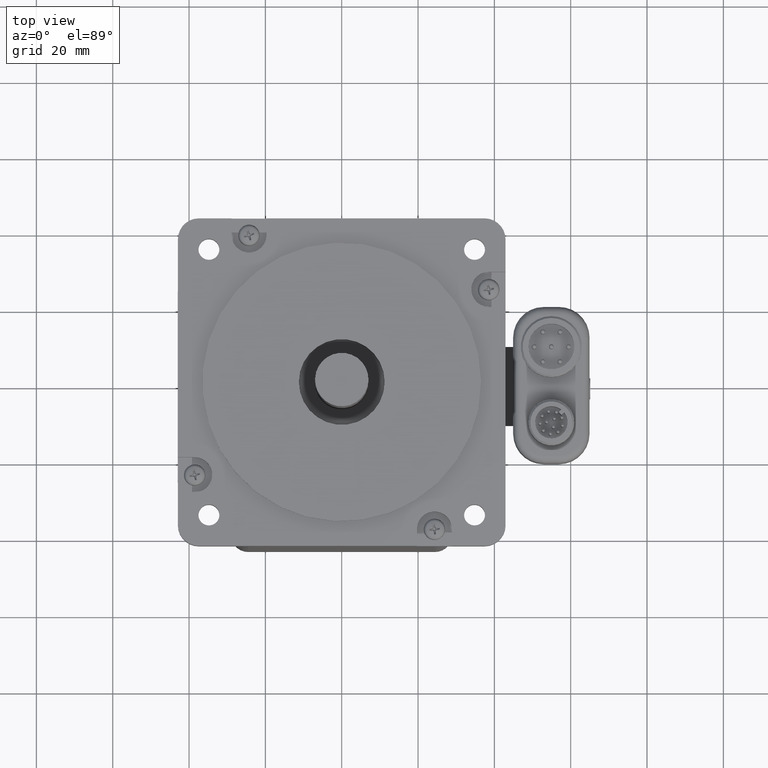
[diagram: clean part render]
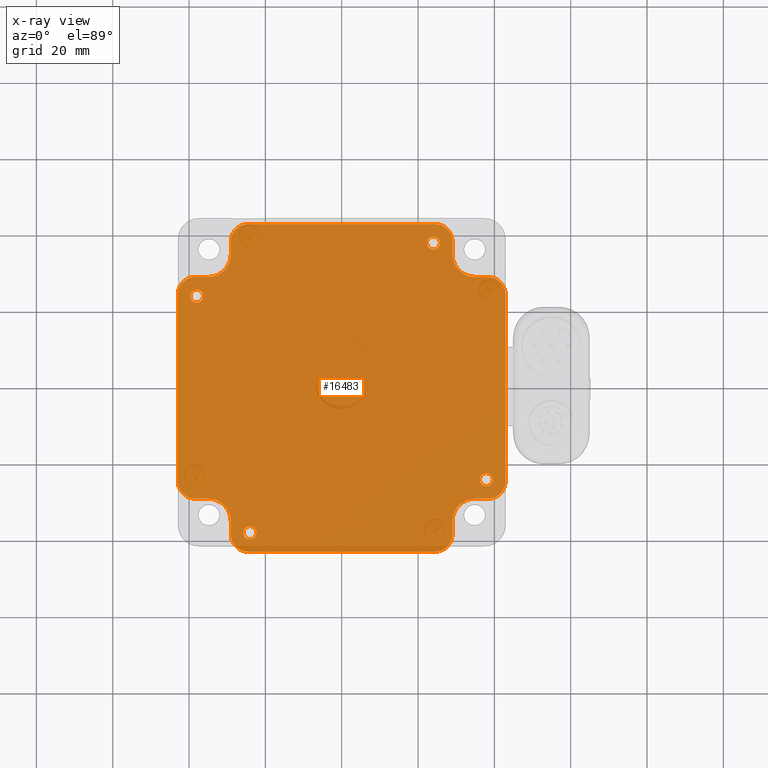
[diagram: x-ray — body ghosted, one internal face saturated and labeled with its STEP entity id]
A machine part, top view, then the same camera in x-ray: the body is ghosted and one INTERNAL B-rep face — a face not visible from any outside direction — is saturated and labeled: STEP entity #16483.
In plain terms, the highlighted planar face has unit normal (0, 0, -1).
Its self-contained STEP definition (entity closure, byte-faithful):
#15717=CARTESIAN_POINT('',(22.324999999999903,37.975000000000193,-71.299999999999912));
#15718=VERTEX_POINT('',#15717);
#15719=CARTESIAN_POINT('',(24.024999999999899,37.975000000000193,-71.299999999999912));
#15720=DIRECTION('',(0.0,0.0,-1.0));
#15721=DIRECTION('',(1.0,0.0,0.0));
#15722=AXIS2_PLACEMENT_3D('',#15719,#15720,#15721);
#15723=CIRCLE('',#15722,1.7);
#15724=EDGE_CURVE('',#15718,#15718,#15723,.T.);
#15757=CARTESIAN_POINT('',(36.181856135419117,-24.0249999999998,-71.299999999999912));
#15758=VERTEX_POINT('',#15757);
#15759=CARTESIAN_POINT('',(37.88185613541912,-24.024999999999793,-71.299999999999912));
#15760=DIRECTION('',(0.0,0.0,-1.0));
#15761=DIRECTION('',(1.0,0.0,0.0));
#15762=AXIS2_PLACEMENT_3D('',#15759,#15760,#15761);
#15763=CIRCLE('',#15762,1.7);
#15764=EDGE_CURVE('',#15758,#15758,#15763,.T.);
#15797=CARTESIAN_POINT('',(-25.775000000000084,-37.925000000000004,-71.299999999999912));
#15798=VERTEX_POINT('',#15797);
#15799=CARTESIAN_POINT('',(-24.075000000000088,-37.924999999999997,-71.299999999999912));
#15800=DIRECTION('',(0.0,0.0,-1.0));
#15801=DIRECTION('',(1.0,0.0,0.0));
#15802=AXIS2_PLACEMENT_3D('',#15799,#15800,#15801);
#15803=CIRCLE('',#15802,1.7);
#15804=EDGE_CURVE('',#15798,#15798,#15803,.T.);
#15837=CARTESIAN_POINT('',(-39.674999999999841,24.074999999999971,-71.299999999999912));
#15838=VERTEX_POINT('',#15837);
#15839=CARTESIAN_POINT('',(-37.974999999999845,24.074999999999974,-71.299999999999912));
#15840=DIRECTION('',(0.0,0.0,-1.0));
#15841=DIRECTION('',(1.0,0.0,0.0));
#15842=AXIS2_PLACEMENT_3D('',#15839,#15840,#15841);
#15843=CIRCLE('',#15842,1.7);
#15844=EDGE_CURVE('',#15838,#15838,#15843,.T.);
#15857=CARTESIAN_POINT('',(34.924999999999564,29.075000000000117,-71.299999999999912));
#15858=VERTEX_POINT('',#15857);
#15859=CARTESIAN_POINT('',(29.024999999999551,34.975000000000193,-71.299999999999912));
#15860=VERTEX_POINT('',#15859);
#15861=CARTESIAN_POINT('',(34.92499999999955,34.975000000000207,-71.299999999999912));
#15862=DIRECTION('',(0.0,0.0,-1.0));
#15863=DIRECTION('',(0.0,-1.0,0.0));
#15864=AXIS2_PLACEMENT_3D('',#15861,#15862,#15863);
#15865=CIRCLE('',#15864,5.9);
#15866=EDGE_CURVE('',#15858,#15860,#15865,.T.);
#15889=CARTESIAN_POINT('',(29.024999999999544,38.375000000000064,-71.299999999999912));
#15890=VERTEX_POINT('',#15889);
#15891=CARTESIAN_POINT('',(29.024999999999551,34.975000000000193,-71.299999999999912));
#15892=DIRECTION('',(0.0,1.0,0.0));
#15893=VECTOR('',#15892,3.399999999999864);
#15894=LINE('',#15891,#15893);
#15895=EDGE_CURVE('',#15860,#15890,#15894,.T.);
#15913=CARTESIAN_POINT('',(24.424999999999528,42.975000000000108,-71.299999999999912));
#15914=VERTEX_POINT('',#15913);
#15915=CARTESIAN_POINT('',(24.424999999999528,38.37500000000005,-71.299999999999912));
#15916=DIRECTION('',(0.0,0.0,1.0));
#15917=DIRECTION('',(0.0,-1.0,0.0));
#15918=AXIS2_PLACEMENT_3D('',#15915,#15916,#15917);
#15919=CIRCLE('',#15918,4.599999999999999);
#15920=EDGE_CURVE('',#15890,#15914,#15919,.T.);
#15938=CARTESIAN_POINT('',(-24.475000000000104,42.975000000000108,-71.299999999999912));
#15939=VERTEX_POINT('',#15938);
#15940=CARTESIAN_POINT('',(24.424999999999528,42.975000000000108,-71.299999999999912));
#15941=DIRECTION('',(-1.0,0.0,0.0));
#15942=VECTOR('',#15941,48.899999999999636);
#15943=LINE('',#15940,#15942);
#15944=EDGE_CURVE('',#15914,#15939,#15943,.T.);
#15962=CARTESIAN_POINT('',(-29.075000000000255,38.374999999999943,-71.299999999999912));
#15963=VERTEX_POINT('',#15962);
#15964=CARTESIAN_POINT('',(-24.475000000000094,38.374999999999957,-71.299999999999912));
#15965=DIRECTION('',(0.0,0.0,1.0));
#15966=DIRECTION('',(1.0,0.0,0.0));
#15967=AXIS2_PLACEMENT_3D('',#15964,#15965,#15966);
#15968=CIRCLE('',#15967,4.6);
#15969=EDGE_CURVE('',#15939,#15963,#15968,.T.);
#15987=CARTESIAN_POINT('',(-29.075000000000099,34.97500000000008,-71.299999999999912));
#15988=VERTEX_POINT('',#15987);
#15989=CARTESIAN_POINT('',(-29.075000000000255,38.374999999999943,-71.299999999999912));
#15990=DIRECTION('',(0.0,-1.0,0.0));
#15991=VECTOR('',#15990,3.399999999999864);
#15992=LINE('',#15989,#15991);
#15993=EDGE_CURVE('',#15963,#15988,#15992,.T.);
#16011=CARTESIAN_POINT('',(-34.975000000000094,29.074999999999982,-71.299999999999912));
#16012=VERTEX_POINT('',#16011);
#16013=CARTESIAN_POINT('',(-34.975000000000101,34.97499999999998,-71.299999999999912));
#16014=DIRECTION('',(0.0,0.0,-1.0));
#16015=DIRECTION('',(1.0,0.0,0.0));
#16016=AXIS2_PLACEMENT_3D('',#16013,#16014,#16015);
#16017=CIRCLE('',#16016,5.9);
#16018=EDGE_CURVE('',#15988,#16012,#16017,.T.);
#16036=CARTESIAN_POINT('',(-38.375000000000171,29.074999999999982,-71.299999999999912));
#16037=VERTEX_POINT('',#16036);
#16038=CARTESIAN_POINT('',(-34.975000000000094,29.074999999999982,-71.299999999999912));
#16039=DIRECTION('',(-1.0,0.0,0.0));
#16040=VECTOR('',#16039,3.400000000000077);
#16041=LINE('',#16038,#16040);
#16042=EDGE_CURVE('',#16012,#16037,#16041,.T.);
#16060=CARTESIAN_POINT('',(-42.975000000000072,24.475000000000051,-71.299999999999912));
#16061=VERTEX_POINT('',#16060);
#16062=CARTESIAN_POINT('',(-38.375000000000156,24.475000000000058,-71.299999999999912));
#16063=DIRECTION('',(0.0,0.0,1.0));
#16064=DIRECTION('',(1.0,0.0,0.0));
#16065=AXIS2_PLACEMENT_3D('',#16062,#16063,#16064);
#16066=CIRCLE('',#16065,4.6);
#16067=EDGE_CURVE('',#16037,#16061,#16066,.T.);
#16085=CARTESIAN_POINT('',(-42.97499999999998,-24.424999999998882,-71.299999999999912));
#16086=VERTEX_POINT('',#16085);
#16087=CARTESIAN_POINT('',(-42.975000000000072,24.475000000000051,-71.299999999999912));
#16088=DIRECTION('',(0.0,-1.0,0.0));
#16089=VECTOR('',#16088,48.899999999998933);
#16090=LINE('',#16087,#16089);
#16091=EDGE_CURVE('',#16061,#16086,#16090,.T.);
#16109=CARTESIAN_POINT('',(-38.37500000000005,-29.024999999999942,-71.299999999999912));
#16110=VERTEX_POINT('',#16109);
#16111=CARTESIAN_POINT('',(-38.375000000000057,-24.424999999998871,-71.299999999999912));
#16112=DIRECTION('',(0.0,0.0,1.0));
#16113=DIRECTION('',(0.0,1.0,0.0));
#16114=AXIS2_PLACEMENT_3D('',#16111,#16112,#16113);
#16115=CIRCLE('',#16114,4.600000000001069);
#16116=EDGE_CURVE('',#16086,#16110,#16115,.T.);
#16134=CARTESIAN_POINT('',(-34.974999999999966,-29.024999999999931,-71.299999999999912));
#16135=VERTEX_POINT('',#16134);
#16136=CARTESIAN_POINT('',(-38.37500000000005,-29.024999999999942,-71.299999999999912));
#16137=DIRECTION('',(1.0,0.0,0.0));
#16138=VECTOR('',#16137,3.400000000000077);
#16139=LINE('',#16136,#16138);
#16140=EDGE_CURVE('',#16110,#16135,#16139,.T.);
#16158=CARTESIAN_POINT('',(-29.075000000000312,-34.925000000000011,-71.299999999999912));
#16159=VERTEX_POINT('',#16158);
#16160=CARTESIAN_POINT('',(-34.975000000000989,-34.925000000000608,-71.299999999999912));
#16161=DIRECTION('',(0.0,0.0,-1.0));
#16162=DIRECTION('',(1.726270E-013,1.0,0.0));
#16163=AXIS2_PLACEMENT_3D('',#16160,#16161,#16162);
#16164=CIRCLE('',#16163,5.900000000000675);
#16165=EDGE_CURVE('',#16135,#16159,#16164,.T.);
#16183=CARTESIAN_POINT('',(-29.074999999999356,-38.325000000000109,-71.299999999999912));
#16184=VERTEX_POINT('',#16183);
#16185=CARTESIAN_POINT('',(-29.075000000000312,-34.925000000000011,-71.299999999999912));
#16186=DIRECTION('',(2.810823E-013,-1.0,0.0));
#16187=VECTOR('',#16186,3.400000000000098);
#16188=LINE('',#16185,#16187);
#16189=EDGE_CURVE('',#16159,#16184,#16188,.T.);
#16207=CARTESIAN_POINT('',(-24.474999999999937,-42.925000000000004,-71.299999999999912));
#16208=VERTEX_POINT('',#16207);
#16209=CARTESIAN_POINT('',(-24.474999999999945,-38.325000000000585,-71.299999999999912));
#16210=DIRECTION('',(0.0,0.0,1.0));
#16211=DIRECTION('',(0.0,1.0,0.0));
#16212=AXIS2_PLACEMENT_3D('',#16209,#16210,#16211);
#16213=CIRCLE('',#16212,4.599999999999417);
#16214=EDGE_CURVE('',#16184,#16208,#16213,.T.);
#16232=CARTESIAN_POINT('',(24.424999999999699,-42.925000000000004,-71.299999999999912));
#16233=VERTEX_POINT('',#16232);
#16234=CARTESIAN_POINT('',(-24.474999999999937,-42.925000000000004,-71.299999999999912));
#16235=DIRECTION('',(1.0,0.0,0.0));
#16236=VECTOR('',#16235,48.899999999999636);
#16237=LINE('',#16234,#16236);
#16238=EDGE_CURVE('',#16208,#16233,#16237,.T.);
#16256=CARTESIAN_POINT('',(29.025000000000563,-38.324999999998703,-71.299999999999912));
#16257=VERTEX_POINT('',#16256);
#16258=CARTESIAN_POINT('',(24.424999999999688,-38.325000000000003,-71.299999999999912));
#16259=DIRECTION('',(0.0,0.0,1.0));
#16260=DIRECTION('',(-1.0,-2.819672E-013,0.0));
#16261=AXIS2_PLACEMENT_3D('',#16258,#16259,#16260);
#16262=CIRCLE('',#16261,4.6);
#16263=EDGE_CURVE('',#16233,#16257,#16262,.T.);
#16281=CARTESIAN_POINT('',(29.024999999999608,-34.924999999999898,-71.299999999999912));
#16282=VERTEX_POINT('',#16281);
#16283=CARTESIAN_POINT('',(29.025000000000563,-38.324999999998703,-71.299999999999912));
#16284=DIRECTION('',(-2.810823E-013,1.0,0.0));
#16285=VECTOR('',#16284,3.399999999998805);
#16286=LINE('',#16283,#16285);
#16287=EDGE_CURVE('',#16257,#16282,#16286,.T.);
#16305=CARTESIAN_POINT('',(34.924999999999677,-29.024999999999803,-71.299999999999912));
#16306=VERTEX_POINT('',#16305);
#16307=CARTESIAN_POINT('',(34.924999999999692,-34.924999999999883,-71.299999999999912));
#16308=DIRECTION('',(0.0,0.0,-1.0));
#16309=DIRECTION('',(-1.0,0.0,0.0));
#16310=AXIS2_PLACEMENT_3D('',#16307,#16308,#16309);
#16311=CIRCLE('',#16310,5.9);
#16312=EDGE_CURVE('',#16282,#16306,#16311,.T.);
#16330=CARTESIAN_POINT('',(38.324999999999761,-29.024999999999789,-71.299999999999912));
#16331=VERTEX_POINT('',#16330);
#16332=CARTESIAN_POINT('',(34.924999999999677,-29.024999999999803,-71.299999999999912));
#16333=DIRECTION('',(1.0,0.0,0.0));
#16334=VECTOR('',#16333,3.400000000000084);
#16335=LINE('',#16332,#16334);
#16336=EDGE_CURVE('',#16306,#16331,#16335,.T.);
#16354=CARTESIAN_POINT('',(42.92499999999967,-24.424999999999869,-71.299999999999912));
#16355=VERTEX_POINT('',#16354);
#16356=CARTESIAN_POINT('',(38.324999999999754,-24.42499999999988,-71.299999999999912));
#16357=DIRECTION('',(0.0,0.0,1.0));
#16358=DIRECTION('',(-1.0,0.0,0.0));
#16359=AXIS2_PLACEMENT_3D('',#16356,#16357,#16358);
#16360=CIRCLE('',#16359,4.6);
#16361=EDGE_CURVE('',#16331,#16355,#16360,.T.);
#16379=CARTESIAN_POINT('',(42.924999999999578,24.475000000000225,-71.299999999999912));
#16380=VERTEX_POINT('',#16379);
#16381=CARTESIAN_POINT('',(42.92499999999967,-24.424999999999869,-71.299999999999912));
#16382=DIRECTION('',(0.0,1.0,0.0));
#16383=VECTOR('',#16382,48.900000000000091);
#16384=LINE('',#16381,#16383);
#16385=EDGE_CURVE('',#16355,#16380,#16384,.T.);
#16403=CARTESIAN_POINT('',(38.324999999999648,29.075000000000124,-71.299999999999912));
#16404=VERTEX_POINT('',#16403);
#16405=CARTESIAN_POINT('',(38.324999999999662,24.475000000000215,-71.299999999999912));
#16406=DIRECTION('',(0.0,0.0,1.0));
#16407=DIRECTION('',(0.0,-1.0,0.0));
#16408=AXIS2_PLACEMENT_3D('',#16405,#16406,#16407);
#16409=CIRCLE('',#16408,4.6);
#16410=EDGE_CURVE('',#16380,#16404,#16409,.T.);
#16428=CARTESIAN_POINT('',(38.324999999999648,29.075000000000124,-71.299999999999912));
#16429=DIRECTION('',(-1.0,0.0,0.0));
#16430=VECTOR('',#16429,3.400000000000091);
#16431=LINE('',#16428,#16430);
#16432=EDGE_CURVE('',#16404,#15858,#16431,.T.);
#16440=CARTESIAN_POINT('',(-0.025000000000184,0.025000000000133,-71.299999999999912));
#16441=DIRECTION('',(0.0,0.0,-1.0));
#16442=DIRECTION('',(0.0,1.0,0.0));
#16443=AXIS2_PLACEMENT_3D('',#16440,#16441,#16442);
#16444=PLANE('',#16443);
#16445=ORIENTED_EDGE('',*,*,#16432,.T.);
#16446=ORIENTED_EDGE('',*,*,#15866,.T.);
#16447=ORIENTED_EDGE('',*,*,#15895,.T.);
#16448=ORIENTED_EDGE('',*,*,#15920,.T.);
#16449=ORIENTED_EDGE('',*,*,#15944,.T.);
#16450=ORIENTED_EDGE('',*,*,#15969,.T.);
#16451=ORIENTED_EDGE('',*,*,#15993,.T.);
#16452=ORIENTED_EDGE('',*,*,#16018,.T.);
#16453=ORIENTED_EDGE('',*,*,#16042,.T.);
#16454=ORIENTED_EDGE('',*,*,#16067,.T.);
#16455=ORIENTED_EDGE('',*,*,#16091,.T.);
#16456=ORIENTED_EDGE('',*,*,#16116,.T.);
#16457=ORIENTED_EDGE('',*,*,#16140,.T.);
#16458=ORIENTED_EDGE('',*,*,#16165,.T.);
#16459=ORIENTED_EDGE('',*,*,#16189,.T.);
#16460=ORIENTED_EDGE('',*,*,#16214,.T.);
#16461=ORIENTED_EDGE('',*,*,#16238,.T.);
#16462=ORIENTED_EDGE('',*,*,#16263,.T.);
#16463=ORIENTED_EDGE('',*,*,#16287,.T.);
#16464=ORIENTED_EDGE('',*,*,#16312,.T.);
#16465=ORIENTED_EDGE('',*,*,#16336,.T.);
#16466=ORIENTED_EDGE('',*,*,#16361,.T.);
#16467=ORIENTED_EDGE('',*,*,#16385,.T.);
#16468=ORIENTED_EDGE('',*,*,#16410,.T.);
#16469=EDGE_LOOP('',(#16445,#16446,#16447,#16448,#16449,#16450,#16451,#16452,#16453,#16454,#16455,#16456,#16457,#16458,#16459,#16460,#16461,#16462,#16463,#16464,#16465,#16466,#16467,#16468));
#16470=FACE_OUTER_BOUND('',#16469,.T.);
#16471=ORIENTED_EDGE('',*,*,#15764,.T.);
#16472=EDGE_LOOP('',(#16471));
#16473=FACE_BOUND('',#16472,.T.);
#16474=ORIENTED_EDGE('',*,*,#15804,.T.);
#16475=EDGE_LOOP('',(#16474));
#16476=FACE_BOUND('',#16475,.T.);
#16477=ORIENTED_EDGE('',*,*,#15844,.T.);
#16478=EDGE_LOOP('',(#16477));
#16479=FACE_BOUND('',#16478,.T.);
#16480=ORIENTED_EDGE('',*,*,#15724,.T.);
#16481=EDGE_LOOP('',(#16480));
#16482=FACE_BOUND('',#16481,.T.);
#16483=ADVANCED_FACE('',(#16470,#16473,#16476,#16479,#16482),#16444,.F.);